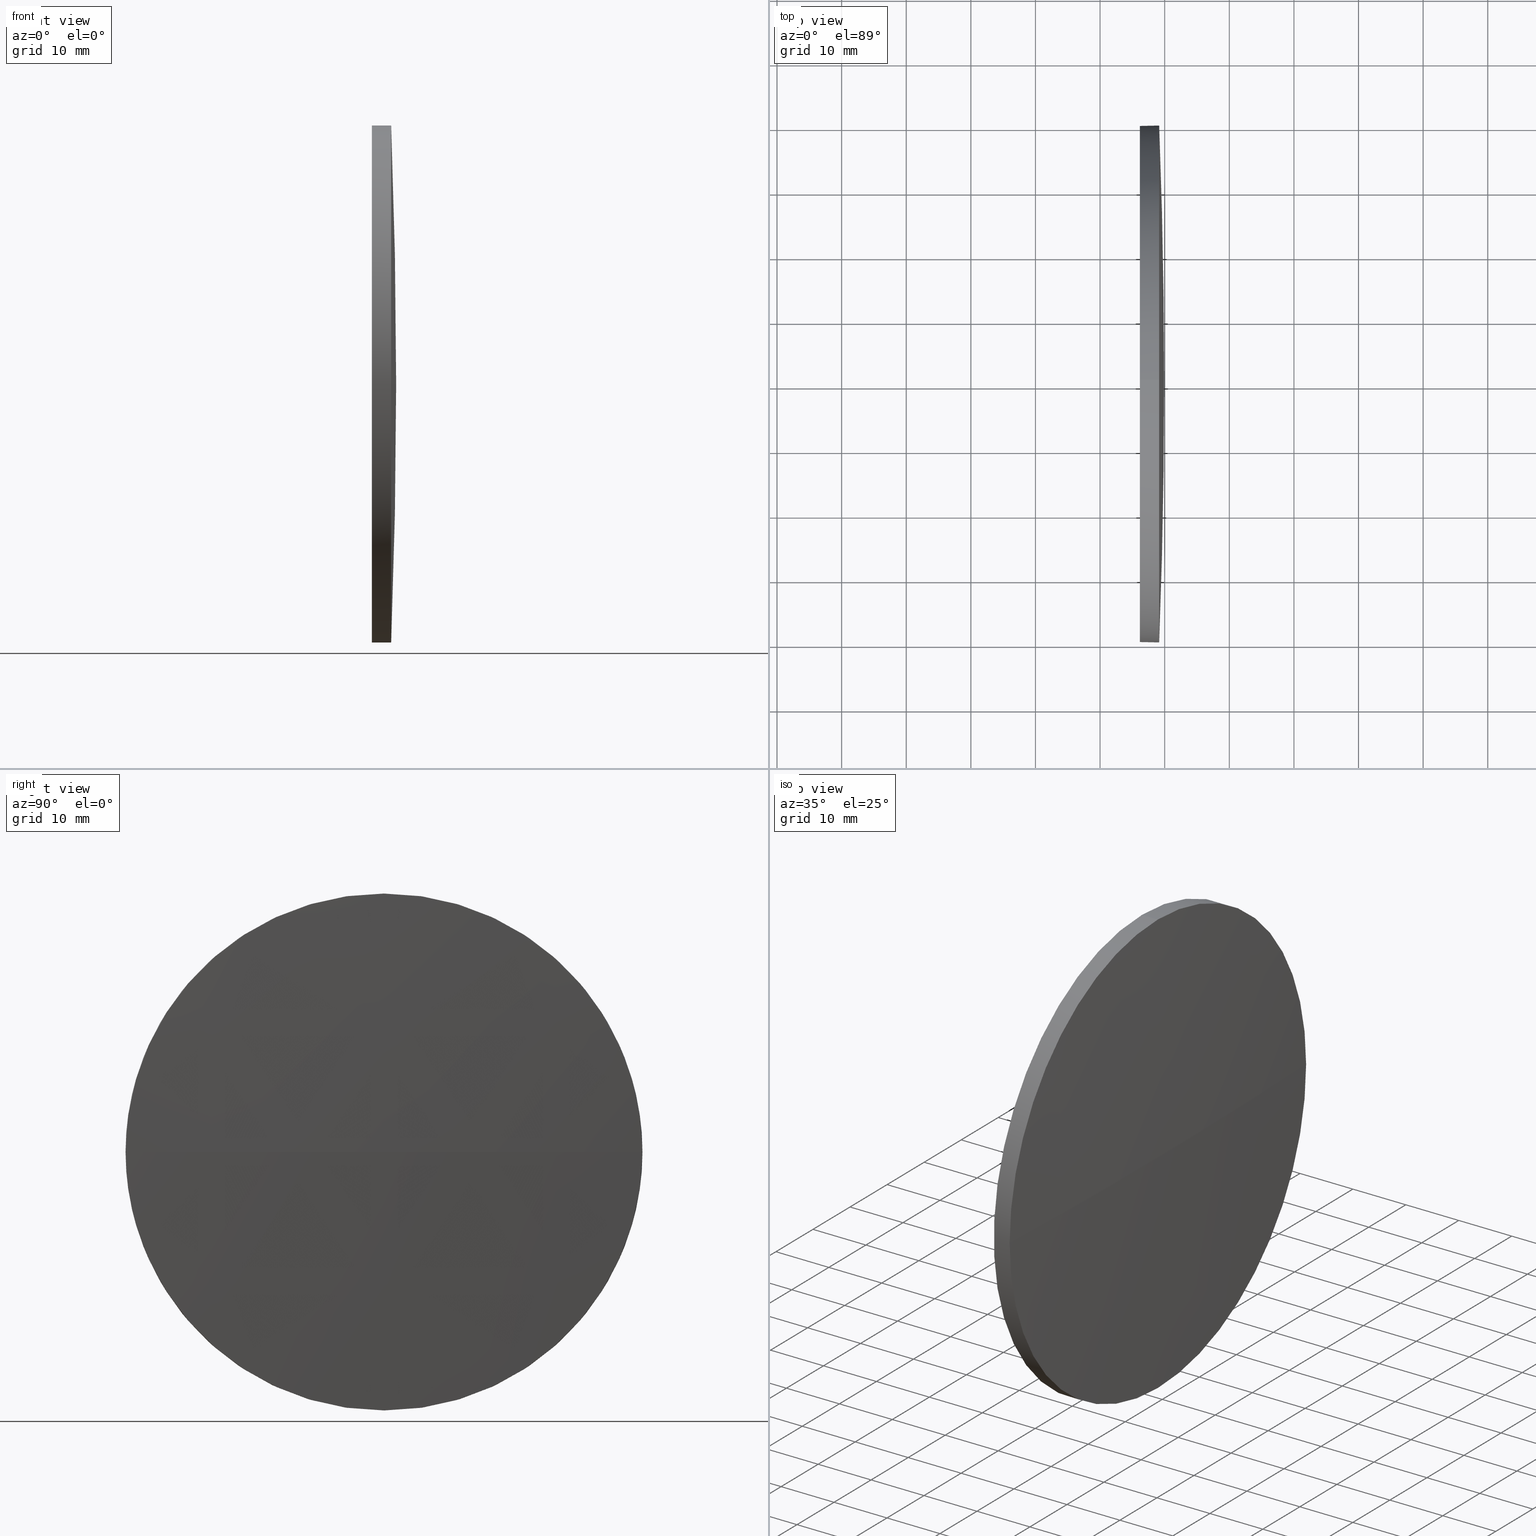
[diagram: canonical four-view strip — front | top / right | iso, engineering-drawing reading convention]
A machine part, canonical four-view strip (front | top / right | iso — engineering-drawing reading convention). The complete STEP part file that produces these views, byte-faithful:
ISO-10303-21;
HEADER;
FILE_DESCRIPTION (( 'STEP AP214' ),
    '1' );
FILE_NAME ('100082.STEP',
    '2019-05-10T09:12:45',
    ( '' ),
    ( '' ),
    'SwSTEP 2.0',
    'SolidWorks 2016',
    '' );
FILE_SCHEMA (( 'AUTOMOTIVE_DESIGN' ));
ENDSEC;

DATA;
#1 = AXIS2_PLACEMENT_3D ( 'NONE', #111, #34, #42 ) ;
#2 = ORIENTED_EDGE ( 'NONE', *, *, #112, .F. ) ;
#3 = STYLED_ITEM ( 'NONE', ( #28 ), #183 ) ;
#4 = PRODUCT_DEFINITION_CONTEXT ( 'detailed design', #45, 'design' ) ;
#5 = DIRECTION ( 'NONE',  ( 0.0000000000000000000, 0.0000000000000000000, -1.000000000000000000 ) ) ;
#6 = EDGE_CURVE ( 'NONE', #180, #106, #55, .T. ) ;
#7 = DIRECTION ( 'NONE',  ( 0.0000000000000000000, 0.0000000000000000000, 1.000000000000000000 ) ) ;
#8 = CARTESIAN_POINT ( 'NONE',  ( -799.4299126226408100, 130.0418907599256200, 0.0000000000000000000 ) ) ;
#9 = LINE ( 'NONE', #98, #114 ) ;
#10 =( NAMED_UNIT ( * ) PLANE_ANGLE_UNIT ( ) SI_UNIT ( $, .RADIAN. ) );
#11 =( NAMED_UNIT ( * ) PLANE_ANGLE_UNIT ( ) SI_UNIT ( $, .RADIAN. ) );
#12 = DIRECTION ( 'NONE',  ( 0.0000000000000000000, 0.0000000000000000000, 1.000000000000000000 ) ) ;
#13 = PRODUCT_DEFINITION ( 'δ֪', '', #30, #4 ) ;
#14 = CIRCLE ( 'NONE', #1, 40.00000000000000700 ) ;
#15 = ORIENTED_EDGE ( 'NONE', *, *, #118, .F. ) ;
#16 = UNCERTAINTY_MEASURE_WITH_UNIT (LENGTH_MEASURE( 1.000000000000000100E-005 ), #149, 'distance_accuracy_value', 'NONE');
#17 = LINE ( 'NONE', #129, #156 ) ;
#18 = SURFACE_STYLE_FILL_AREA ( #40 ) ;
#19 = FILL_AREA_STYLE_COLOUR ( '', #50 ) ;
#20 = PRODUCT_RELATED_PRODUCT_CATEGORY ( 'part', '', ( #99 ) ) ;
#21 = EDGE_CURVE ( 'NONE', #85, #106, #9, .T. ) ;
#22 = ORIENTED_EDGE ( 'NONE', *, *, #112, .T. ) ;
#23 = DIRECTION ( 'NONE',  ( -1.000000000000000000, -0.0000000000000000000, -0.0000000000000000000 ) ) ;
#24 = DIRECTION ( 'NONE',  ( 0.0000000000000000000, -1.000000000000000000, -1.224646799147353500E-016 ) ) ;
#25 = EDGE_CURVE ( 'NONE', #106, #180, #105, .T. ) ;
#26 = AXIS2_PLACEMENT_3D ( 'NONE', #171, #132, #120 ) ;
#27 = MANIFOLD_SOLID_BREP ( '��ת1', #100 ) ;
#28 = PRESENTATION_STYLE_ASSIGNMENT (( #86 ) ) ;
#29 = ADVANCED_FACE ( 'NONE', ( #58 ), #81, .F. ) ;
#30 = PRODUCT_DEFINITION_FORMATION_WITH_SPECIFIED_SOURCE ( '�κ�', '', #99, .NOT_KNOWN. ) ;
#31 = EDGE_LOOP ( 'NONE', ( #121, #95, #65, #173, #32 ) ) ;
#32 = ORIENTED_EDGE ( 'NONE', *, *, #25, .F. ) ;
#33 = DIRECTION ( 'NONE',  ( 0.0000000000000000000, 0.0000000000000000000, 1.000000000000000000 ) ) ;
#34 = DIRECTION ( 'NONE',  ( -1.000000000000000000, -0.0000000000000000000, -0.0000000000000000000 ) ) ;
#35 = PRODUCT_CONTEXT ( 'NONE', #181, 'mechanical' ) ;
#36 = CARTESIAN_POINT ( 'NONE',  ( -799.4299126226408100, 130.0418907599256200, 0.0000000000000000000 ) ) ;
#37 = ORIENTED_EDGE ( 'NONE', *, *, #25, .T. ) ;
#38 = ORIENTED_EDGE ( 'NONE', *, *, #152, .F. ) ;
#39 =( GEOMETRIC_REPRESENTATION_CONTEXT ( 3 ) GLOBAL_UNCERTAINTY_ASSIGNED_CONTEXT ( ( #168 ) ) GLOBAL_UNIT_ASSIGNED_CONTEXT ( ( #76, #11, #103 ) ) REPRESENTATION_CONTEXT ( 'NONE', 'WORKASPACE' ) );
#40 = FILL_AREA_STYLE ('',( #19 ) ) ;
#41 = CIRCLE ( 'NONE', #54, 1039.346038961101200 ) ;
#42 = DIRECTION ( 'NONE',  ( 0.0000000000000000000, 0.0000000000000000000, 1.000000000000000000 ) ) ;
#43 = EDGE_CURVE ( 'NONE', #85, #135, #14, .T. ) ;
#44 = DIRECTION ( 'NONE',  ( -1.000000000000000000, -0.0000000000000000000, -0.0000000000000000000 ) ) ;
#45 = APPLICATION_CONTEXT ( 'automotive_design' ) ;
#46 = CARTESIAN_POINT ( 'NONE',  ( 239.1461263384603600, 130.0418907599245100, -40.00000000000000700 ) ) ;
#47 = DIRECTION ( 'NONE',  ( 0.0000000000000000000, 0.0000000000000000000, 1.000000000000000000 ) ) ;
#48 = SPHERICAL_SURFACE ( 'NONE', #64, 1039.346038961101200 ) ;
#49 = AXIS2_PLACEMENT_3D ( 'NONE', #160, #57, #80 ) ;
#50 = COLOUR_RGB ( '',1.000000000000000000, 1.000000000000000000, 1.000000000000000000 ) ;
#51 = FACE_OUTER_BOUND ( 'NONE', #124, .T. ) ;
#52 = ORIENTED_EDGE ( 'NONE', *, *, #43, .F. ) ;
#53 = ADVANCED_FACE ( 'NONE', ( #51 ), #48, .T. ) ;
#54 = AXIS2_PLACEMENT_3D ( 'NONE', #102, #115, #24 ) ;
#55 = CIRCLE ( 'NONE', #72, 40.00000000000000700 ) ;
#56 =( NAMED_UNIT ( * ) PLANE_ANGLE_UNIT ( ) SI_UNIT ( $, .RADIAN. ) );
#57 = DIRECTION ( 'NONE',  ( -1.000000000000000000, -0.0000000000000000000, -0.0000000000000000000 ) ) ;
#58 = FACE_OUTER_BOUND ( 'NONE', #184, .T. ) ;
#59 = DIRECTION ( 'NONE',  ( 0.0000000000000000000, 0.0000000000000000000, 1.000000000000000000 ) ) ;
#60 = CARTESIAN_POINT ( 'NONE',  ( 239.1461263384603600, 130.0418907599245100, 0.0000000000000000000 ) ) ;
#61 = SURFACE_SIDE_STYLE ('',( #154 ) ) ;
#62 = DIRECTION ( 'NONE',  ( 0.0000000000000000000, 0.0000000000000000000, -1.000000000000000000 ) ) ;
#63 = CARTESIAN_POINT ( 'NONE',  ( 239.1461263384604500, 170.0418907599239400, 4.898587196589211100E-015 ) ) ;
#64 = AXIS2_PLACEMENT_3D ( 'NONE', #8, #33, #96 ) ;
#65 = ORIENTED_EDGE ( 'NONE', *, *, #134, .T. ) ;
#66 = AXIS2_PLACEMENT_3D ( 'NONE', #116, #167, #74 ) ;
#67 = ORIENTED_EDGE ( 'NONE', *, *, #21, .T. ) ;
#68 =( LENGTH_UNIT ( ) NAMED_UNIT ( * ) SI_UNIT ( .MILLI., .METRE. ) );
#69 = ADVANCED_FACE ( 'NONE', ( #174 ), #170, .T. ) ;
#70 = ORIENTED_EDGE ( 'NONE', *, *, #175, .T. ) ;
#71 = DIRECTION ( 'NONE',  ( 1.000000000000000000, 0.0000000000000000000, 0.0000000000000000000 ) ) ;
#72 = AXIS2_PLACEMENT_3D ( 'NONE', #125, #165, #7 ) ;
#73 = DIRECTION ( 'NONE',  ( -1.000000000000000000, -0.0000000000000000000, -0.0000000000000000000 ) ) ;
#74 = DIRECTION ( 'NONE',  ( 0.0000000000000000000, 0.0000000000000000000, 1.000000000000000000 ) ) ;
#75 = PRESENTATION_STYLE_ASSIGNMENT (( #144 ) ) ;
#76 =( LENGTH_UNIT ( ) NAMED_UNIT ( * ) SI_UNIT ( .MILLI., .METRE. ) );
#77 = CARTESIAN_POINT ( 'NONE',  ( 0.0000000000000000000, 0.0000000000000000000, 0.0000000000000000000 ) ) ;
#78 = AXIS2_PLACEMENT_3D ( 'NONE', #36, #62, #182 ) ;
#79 =( GEOMETRIC_REPRESENTATION_CONTEXT ( 3 ) GLOBAL_UNCERTAINTY_ASSIGNED_CONTEXT ( ( #142 ) ) GLOBAL_UNIT_ASSIGNED_CONTEXT ( ( #68, #56, #109 ) ) REPRESENTATION_CONTEXT ( 'NONE', 'WORKASPACE' ) );
#80 = DIRECTION ( 'NONE',  ( 0.0000000000000000000, 0.0000000000000000000, 1.000000000000000000 ) ) ;
#81 = PLANE ( 'NONE',  #141 ) ;
#82 = CIRCLE ( 'NONE', #84, 40.00000000000000700 ) ;
#83 = DIRECTION ( 'NONE',  ( -1.000000000000000000, -0.0000000000000000000, -0.0000000000000000000 ) ) ;
#84 = AXIS2_PLACEMENT_3D ( 'NONE', #147, #73, #59 ) ;
#85 = VERTEX_POINT ( 'NONE', #46 ) ;
#86 = SURFACE_STYLE_USAGE ( .BOTH. , #61 ) ;
#87 = FILL_AREA_STYLE ('',( #166 ) ) ;
#88 = DIRECTION ( 'NONE',  ( 1.000000000000000000, 0.0000000000000000000, 0.0000000000000000000 ) ) ;
#89 = CIRCLE ( 'NONE', #26, 40.00000000000000700 ) ;
#90 = CARTESIAN_POINT ( 'NONE',  ( 239.9161263384602600, 130.0418907599255600, 0.0000000000000000000 ) ) ;
#91 = ORIENTED_EDGE ( 'NONE', *, *, #175, .F. ) ;
#92 = PRODUCT_DEFINITION_SHAPE ( 'NONE', 'NONE',  #13 ) ;
#93 = STYLED_ITEM ( 'NONE', ( #75 ), #27 ) ;
#94 = PRESENTATION_LAYER_ASSIGNMENT (  '', '', ( #3 ) ) ;
#95 = ORIENTED_EDGE ( 'NONE', *, *, #43, .T. ) ;
#96 = DIRECTION ( 'NONE',  ( 0.0000000000000000000, -1.000000000000000000, 0.0000000000000000000 ) ) ;
#97 = ADVANCED_FACE ( 'NONE', ( #126 ), #163, .T. ) ;
#98 = CARTESIAN_POINT ( 'NONE',  ( 217.3311486608872700, 130.0418907599245100, -40.00000000000000700 ) ) ;
#99 = PRODUCT ( '100082', '100082', '', ( #35 ) ) ;
#100 = CLOSED_SHELL ( 'NONE', ( #97, #139, #53, #69, #29 ) ) ;
#101 = CARTESIAN_POINT ( 'NONE',  ( 236.1561263384603500, 130.0418907599245100, -40.00000000000000700 ) ) ;
#102 = CARTESIAN_POINT ( 'NONE',  ( -799.4299126226408100, 130.0418907599256200, 0.0000000000000000000 ) ) ;
#103 =( NAMED_UNIT ( * ) SI_UNIT ( $, .STERADIAN. ) SOLID_ANGLE_UNIT ( ) );
#104 = PRESENTATION_LAYER_ASSIGNMENT (  '', '', ( #93 ) ) ;
#105 = CIRCLE ( 'NONE', #49, 40.00000000000000700 ) ;
#106 = VERTEX_POINT ( 'NONE', #101 ) ;
#107 = VERTEX_POINT ( 'NONE', #113 ) ;
#108 =( GEOMETRIC_REPRESENTATION_CONTEXT ( 3 ) GLOBAL_UNCERTAINTY_ASSIGNED_CONTEXT ( ( #16 ) ) GLOBAL_UNIT_ASSIGNED_CONTEXT ( ( #149, #10, #130 ) ) REPRESENTATION_CONTEXT ( 'NONE', 'WORKASPACE' ) );
#109 =( NAMED_UNIT ( * ) SI_UNIT ( $, .STERADIAN. ) SOLID_ANGLE_UNIT ( ) );
#110 = FACE_OUTER_BOUND ( 'NONE', #153, .T. ) ;
#111 = CARTESIAN_POINT ( 'NONE',  ( 239.1461263384603600, 130.0418907599245100, 0.0000000000000000000 ) ) ;
#112 = EDGE_CURVE ( 'NONE', #107, #140, #89, .T. ) ;
#113 = CARTESIAN_POINT ( 'NONE',  ( 239.1461263384603600, 130.0418907599245100, 40.00000000000000700 ) ) ;
#114 = VECTOR ( 'NONE', #83, 1000.000000000000000 ) ;
#115 = DIRECTION ( 'NONE',  ( 0.0000000000000000000, -1.224646799147353200E-016, 1.000000000000000000 ) ) ;
#116 = CARTESIAN_POINT ( 'NONE',  ( 217.3311486608872700, 130.0418907599245100, 0.0000000000000000000 ) ) ;
#117 = APPLICATION_PROTOCOL_DEFINITION ( 'draft international standard', 'automotive_design', 1998, #181 ) ;
#118 = EDGE_CURVE ( 'NONE', #140, #85, #122, .T. ) ;
#119 = SPHERICAL_SURFACE ( 'NONE', #172, 1039.346038961101200 ) ;
#120 = DIRECTION ( 'NONE',  ( 0.0000000000000000000, 0.0000000000000000000, 1.000000000000000000 ) ) ;
#121 = ORIENTED_EDGE ( 'NONE', *, *, #21, .F. ) ;
#122 = CIRCLE ( 'NONE', #136, 40.00000000000000700 ) ;
#123 = MECHANICAL_DESIGN_GEOMETRIC_PRESENTATION_REPRESENTATION (  '', ( #93 ), #79 ) ;
#124 = EDGE_LOOP ( 'NONE', ( #38, #70, #52, #15 ) ) ;
#125 = CARTESIAN_POINT ( 'NONE',  ( 236.1561263384603500, 130.0418907599245100, 0.0000000000000000000 ) ) ;
#126 = FACE_OUTER_BOUND ( 'NONE', #137, .T. ) ;
#127 = SURFACE_SIDE_STYLE ('',( #18 ) ) ;
#128 = ORIENTED_EDGE ( 'NONE', *, *, #162, .F. ) ;
#129 = CARTESIAN_POINT ( 'NONE',  ( 217.3311486608872700, 130.0418907599245100, 40.00000000000000700 ) ) ;
#130 =( NAMED_UNIT ( * ) SI_UNIT ( $, .STERADIAN. ) SOLID_ANGLE_UNIT ( ) );
#131 = CARTESIAN_POINT ( 'NONE',  ( 236.1561263384603500, 130.0418907599245100, 40.00000000000000700 ) ) ;
#132 = DIRECTION ( 'NONE',  ( -1.000000000000000000, -0.0000000000000000000, -0.0000000000000000000 ) ) ;
#133 = CARTESIAN_POINT ( 'NONE',  ( 239.1461263384604500, 90.04189075992616200, 0.0000000000000000000 ) ) ;
#134 = EDGE_CURVE ( 'NONE', #135, #107, #82, .T. ) ;
#135 = VERTEX_POINT ( 'NONE', #133 ) ;
#136 = AXIS2_PLACEMENT_3D ( 'NONE', #60, #23, #150 ) ;
#137 = EDGE_LOOP ( 'NONE', ( #186, #67, #148, #128, #22 ) ) ;
#138 = COLOUR_RGB ( '',1.000000000000000000, 1.000000000000000000, 1.000000000000000000 ) ;
#139 = ADVANCED_FACE ( 'NONE', ( #110 ), #119, .T. ) ;
#140 = VERTEX_POINT ( 'NONE', #63 ) ;
#141 = AXIS2_PLACEMENT_3D ( 'NONE', #161, #71, #5 ) ;
#142 = UNCERTAINTY_MEASURE_WITH_UNIT (LENGTH_MEASURE( 1.000000000000000100E-005 ), #68, 'distance_accuracy_value', 'NONE');
#143 = CARTESIAN_POINT ( 'NONE',  ( 217.3311486608872700, 130.0418907599245100, 0.0000000000000000000 ) ) ;
#144 = SURFACE_STYLE_USAGE ( .BOTH. , #127 ) ;
#145 = DIRECTION ( 'NONE',  ( 0.0000000000000000000, 0.0000000000000000000, 1.000000000000000000 ) ) ;
#146 = ORIENTED_EDGE ( 'NONE', *, *, #6, .T. ) ;
#147 = CARTESIAN_POINT ( 'NONE',  ( 239.1461263384603600, 130.0418907599245100, 0.0000000000000000000 ) ) ;
#148 = ORIENTED_EDGE ( 'NONE', *, *, #6, .F. ) ;
#149 =( LENGTH_UNIT ( ) NAMED_UNIT ( * ) SI_UNIT ( .MILLI., .METRE. ) );
#150 = DIRECTION ( 'NONE',  ( 0.0000000000000000000, 0.0000000000000000000, 1.000000000000000000 ) ) ;
#151 = DIRECTION ( 'NONE',  ( 0.0000000000000000000, -1.000000000000000000, 0.0000000000000000000 ) ) ;
#152 = EDGE_CURVE ( 'NONE', #177, #140, #41, .T. ) ;
#153 = EDGE_LOOP ( 'NONE', ( #91, #157, #2, #176 ) ) ;
#154 = SURFACE_STYLE_FILL_AREA ( #87 ) ;
#155 = MECHANICAL_DESIGN_GEOMETRIC_PRESENTATION_REPRESENTATION (  '', ( #3 ), #39 ) ;
#156 = VECTOR ( 'NONE', #44, 1000.000000000000000 ) ;
#157 = ORIENTED_EDGE ( 'NONE', *, *, #152, .T. ) ;
#158 = CIRCLE ( 'NONE', #78, 1039.346038961101200 ) ;
#159 = AXIS2_PLACEMENT_3D ( 'NONE', #143, #164, #145 ) ;
#160 = CARTESIAN_POINT ( 'NONE',  ( 236.1561263384603500, 130.0418907599245100, 0.0000000000000000000 ) ) ;
#161 = CARTESIAN_POINT ( 'NONE',  ( 236.1561263384603500, 130.0418907599245100, 0.0000000000000000000 ) ) ;
#162 = EDGE_CURVE ( 'NONE', #107, #180, #17, .T. ) ;
#163 = CYLINDRICAL_SURFACE ( 'NONE', #66, 40.00000000000000700 ) ;
#164 = DIRECTION ( 'NONE',  ( -1.000000000000000000, -0.0000000000000000000, -0.0000000000000000000 ) ) ;
#165 = DIRECTION ( 'NONE',  ( -1.000000000000000000, -0.0000000000000000000, -0.0000000000000000000 ) ) ;
#166 = FILL_AREA_STYLE_COLOUR ( '', #138 ) ;
#167 = DIRECTION ( 'NONE',  ( -1.000000000000000000, -0.0000000000000000000, -0.0000000000000000000 ) ) ;
#168 = UNCERTAINTY_MEASURE_WITH_UNIT (LENGTH_MEASURE( 1.000000000000000100E-005 ), #76, 'distance_accuracy_value', 'NONE');
#169 = CARTESIAN_POINT ( 'NONE',  ( -799.4299126226408100, 130.0418907599256200, 0.0000000000000000000 ) ) ;
#170 = CYLINDRICAL_SURFACE ( 'NONE', #159, 40.00000000000000700 ) ;
#171 = CARTESIAN_POINT ( 'NONE',  ( 239.1461263384603600, 130.0418907599245100, 0.0000000000000000000 ) ) ;
#172 = AXIS2_PLACEMENT_3D ( 'NONE', #169, #47, #151 ) ;
#173 = ORIENTED_EDGE ( 'NONE', *, *, #162, .T. ) ;
#174 = FACE_OUTER_BOUND ( 'NONE', #31, .T. ) ;
#175 = EDGE_CURVE ( 'NONE', #177, #135, #158, .T. ) ;
#176 = ORIENTED_EDGE ( 'NONE', *, *, #134, .F. ) ;
#177 = VERTEX_POINT ( 'NONE', #90 ) ;
#178 = SHAPE_DEFINITION_REPRESENTATION ( #92, #183 ) ;
#179 = AXIS2_PLACEMENT_3D ( 'NONE', #77, #12, #88 ) ;
#180 = VERTEX_POINT ( 'NONE', #131 ) ;
#181 = APPLICATION_CONTEXT ( 'automotive_design' ) ;
#182 = DIRECTION ( 'NONE',  ( -1.000000000000000000, 0.0000000000000000000, 0.0000000000000000000 ) ) ;
#183 = ADVANCED_BREP_SHAPE_REPRESENTATION ( '100082', ( #27, #179 ), #108 ) ;
#184 = EDGE_LOOP ( 'NONE', ( #146, #37 ) ) ;
#185 = APPLICATION_PROTOCOL_DEFINITION ( 'draft international standard', 'automotive_design', 1998, #45 ) ;
#186 = ORIENTED_EDGE ( 'NONE', *, *, #118, .T. ) ;
ENDSEC;
END-ISO-10303-21;
